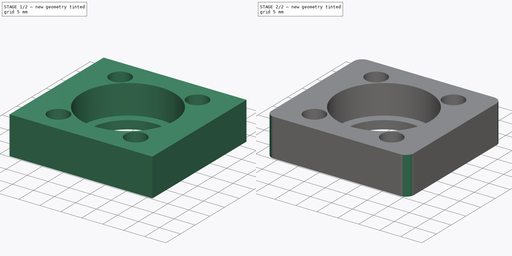
[diagram: build sequence overview — one tinted view per stage of 2, left to right]
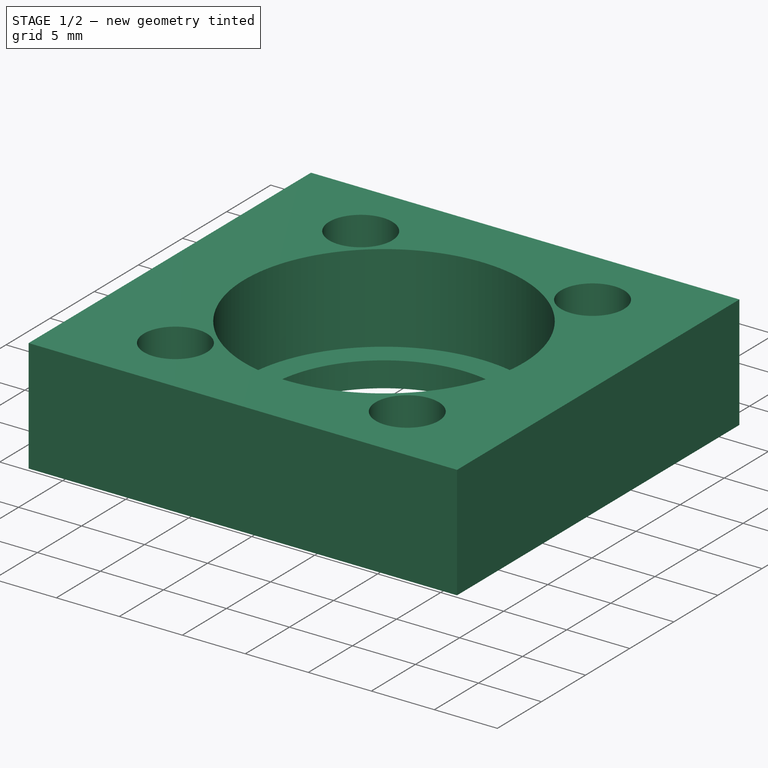
[diagram: stage 1 of 2 — iso view after this stage's code; geometry added in this stage tinted green]
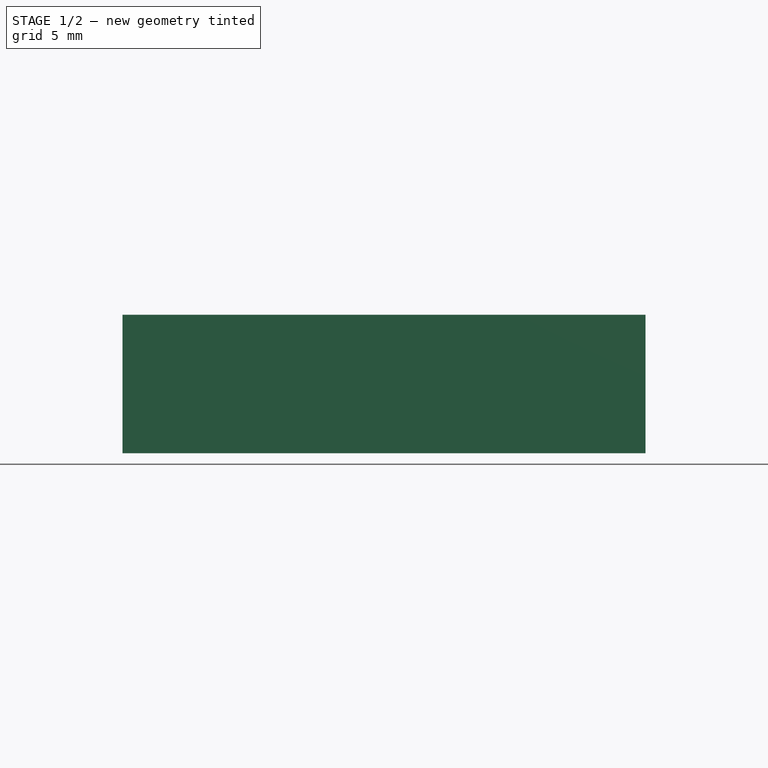
[diagram: stage 1 of 2 — front view after this stage's code; geometry added in this stage tinted green]
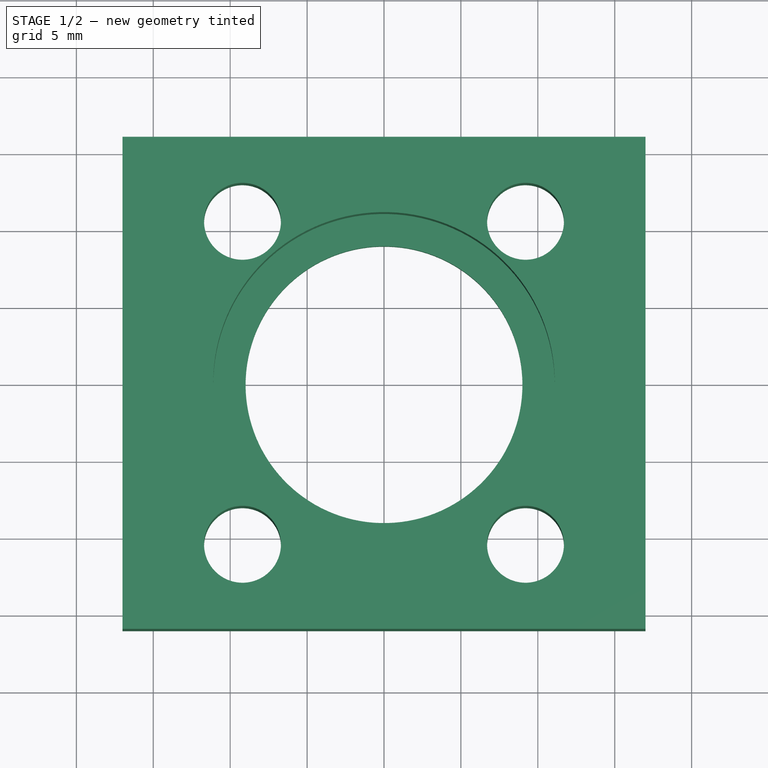
[diagram: stage 1 of 2 — top view after this stage's code; geometry added in this stage tinted green]
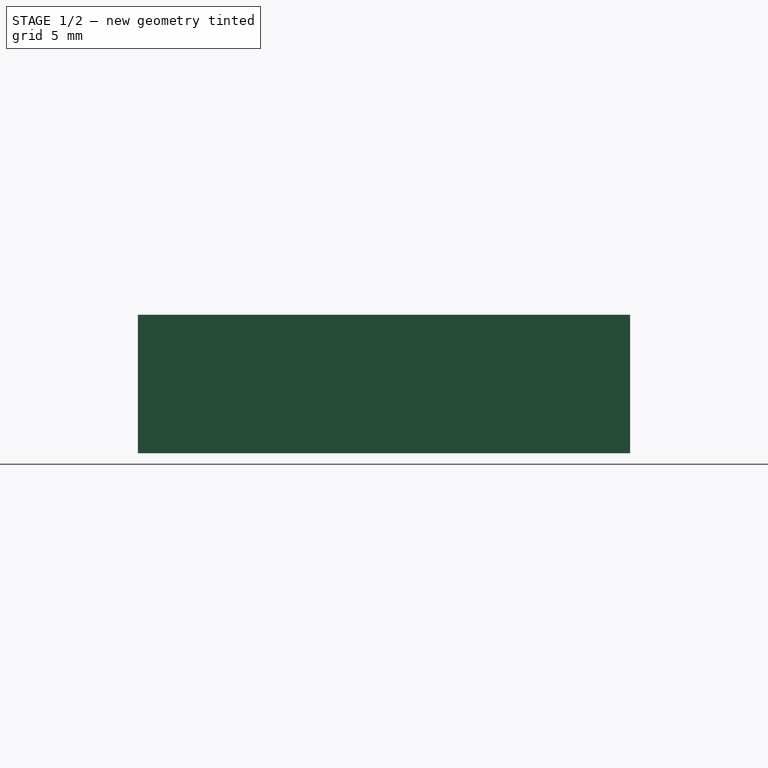
[diagram: stage 1 of 2 — right view after this stage's code; geometry added in this stage tinted green]
FCSTD DOCUMENT  (FreeCAD 0.19R24276 (Git))
Label: Bearing_fix_22x8x7_V2
License: All rights reserved
LicenseURL: http://en.wikipedia.org/wiki/All_rights_reserved
objects: Sketcher::SketchObject×2, PartDesign::Pad×2, PartDesign::Fillet×1, PartDesign::Body×1
note: 9 computed .brp shape members not serialized (recipe doc carries the construction recipe); baked Part::Feature solids carry a one-line shape summary decoded from their .brp

FEATURE [Sketcher::SketchObject] Sketch
  FullyConstrained = true
  MapMode = 5
  Support = -> [XY_Plane]
  sketch-geometry (16):
    g0: Circle CenterX=-9.2 CenterY=10.5 CenterZ=0 NormalX=0 NormalY=0 NormalZ=1 AngleXU=0 Radius=2.5
    g1: Circle CenterX=9.2 CenterY=10.5 CenterZ=0 NormalX=0 NormalY=0 NormalZ=1 AngleXU=0 Radius=2.5
    g2: Circle CenterX=-9.2 CenterY=-10.5 CenterZ=0 NormalX=0 NormalY=0 NormalZ=1 AngleXU=0 Radius=2.5
    g3: Circle CenterX=9.2 CenterY=-10.5 CenterZ=0 NormalX=0 NormalY=0 NormalZ=1 AngleXU=0 Radius=2.5
    g4: LineSegment StartX=-9.2 StartY=10.5 StartZ=0 EndX=9.2 EndY=-10.5 EndZ=0
    g5: LineSegment StartX=-9.2 StartY=-10.5 StartZ=0 EndX=9.2 EndY=10.5 EndZ=0
    g6: GeomPoint X=0 Y=0 Z=0
    g7: GeomPoint X=0 Y=0 Z=0
    g8: Circle CenterX=0 CenterY=0 CenterZ=0 NormalX=0 NormalY=0 NormalZ=1 AngleXU=0 Radius=5.5
    g9: LineSegment StartX=0 StartY=0 StartZ=0 EndX=0 EndY=16 EndZ=0
    g10: Circle CenterX=0 CenterY=0 CenterZ=0 NormalX=0 NormalY=0 NormalZ=1 AngleXU=0 Radius=11.1
    g11: LineSegment StartX=17 StartY=-16 StartZ=0 EndX=-17 EndY=-16 EndZ=0
    g12: LineSegment StartX=-17 StartY=-16 StartZ=0 EndX=-17 EndY=16 EndZ=0
    g13: LineSegment StartX=-17 StartY=16 StartZ=0 EndX=17 EndY=16 EndZ=0
    g14: LineSegment StartX=17 StartY=16 StartZ=0 EndX=17 EndY=-16 EndZ=0
    g15: LineSegment StartX=0 StartY=0 StartZ=0 EndX=0 EndY=-16 EndZ=0
  constraints (39):
    c: Diameter(g0) = 5
    c: Equal(g0,g1)
    c: Equal(g0,g3)
    c: Equal(g0,g2)
    c: Horizontal(g0,g1)
    c: Horizontal(g2,g3)
    c: DistanceX(g2,g3) = 18.4
    c: Vertical(g2,g0)
    c: Vertical(g1,g3)
    c: DistanceY(g3,g1) = 21
    c: Coincident(g4,g0)
    c: Coincident(g4,g3)
    c: Coincident(g5,g2)
    c: Coincident(g5,g1)
    c: PointOnObject(g6,g4)
    c: PointOnObject(g7,g5)
    c: Coincident(g6,g7)
    c: Coincident(g8,g6)
    c: Diameter(g8) = 11
    c: Coincident(g9,g6)
    c: Vertical(g9)
    c: Coincident(g10,g6)
    c: Diameter(g10) = 22.2
    c: Coincident(g11,g12)
    c: Coincident(g12,g13)
    c: Coincident(g13,g14)
    c: Coincident(g14,g11)
    c: Horizontal(g11)
    c: Horizontal(g13)
    c: Vertical(g12)
    c: Vertical(g14)
    c: DistanceX(g13,g13) = 34
    c: Symmetric(g12,g13,g9)
    c: DistanceY(g12,g12) = 32
    c: Coincident(g-1,g6)
    c: Coincident(g15,g-1)
    c: PointOnObject(g15,g11)
    c: Vertical(g15)
    c: Equal(g15,g9)
FEATURE [PartDesign::Pad] Pad
  Direction = (1,1,1)
  Length = 7
  Length2 = 100
  Profile = -> Sketch
  Type = 0
FEATURE [Sketcher::SketchObject] Sketch001
  FullyConstrained = true
  MapMode = 5
  Support = -> [XY_Plane]
  sketch-geometry (16):
    g0: Circle CenterX=-9.2 CenterY=10.5 CenterZ=0 NormalX=0 NormalY=0 NormalZ=1 AngleXU=0 Radius=2.5
    g1: Circle CenterX=9.2 CenterY=10.5 CenterZ=0 NormalX=0 NormalY=0 NormalZ=1 AngleXU=0 Radius=2.5
    g2: Circle CenterX=-9.2 CenterY=-10.5 CenterZ=0 NormalX=0 NormalY=0 NormalZ=1 AngleXU=0 Radius=2.5
    g3: Circle CenterX=9.2 CenterY=-10.5 CenterZ=0 NormalX=0 NormalY=0 NormalZ=1 AngleXU=0 Radius=2.5
    g4: LineSegment StartX=-9.2 StartY=10.5 StartZ=0 EndX=9.2 EndY=-10.5 EndZ=0
    g5: LineSegment StartX=-9.2 StartY=-10.5 StartZ=0 EndX=9.2 EndY=10.5 EndZ=0
    g6: GeomPoint X=0 Y=0 Z=0
    g7: GeomPoint X=0 Y=0 Z=0
    g8: Circle CenterX=0 CenterY=0 CenterZ=0 NormalX=0 NormalY=0 NormalZ=1 AngleXU=0 Radius=5.5
    g9: LineSegment StartX=0 StartY=0 StartZ=0 EndX=0 EndY=16 EndZ=0
    g10: Circle CenterX=0 CenterY=0 CenterZ=0 NormalX=0 NormalY=0 NormalZ=1 AngleXU=0 Radius=9
    g11: LineSegment StartX=17 StartY=-16 StartZ=0 EndX=-17 EndY=-16 EndZ=0
    g12: LineSegment StartX=-17 StartY=-16 StartZ=0 EndX=-17 EndY=16 EndZ=0
    g13: LineSegment StartX=-17 StartY=16 StartZ=0 EndX=17 EndY=16 EndZ=0
    g14: LineSegment StartX=17 StartY=16 StartZ=0 EndX=17 EndY=-16 EndZ=0
    g15: LineSegment StartX=0 StartY=0 StartZ=0 EndX=0 EndY=-16 EndZ=0
  constraints (39):
    c: Diameter(g0) = 5
    c: Equal(g0,g1)
    c: Equal(g0,g3)
    c: Equal(g0,g2)
    c: Horizontal(g0,g1)
    c: Horizontal(g2,g3)
    c: DistanceX(g2,g3) = 18.4
    c: Vertical(g2,g0)
    c: Vertical(g1,g3)
    c: DistanceY(g3,g1) = 21
    c: Coincident(g4,g0)
    c: Coincident(g4,g3)
    c: Coincident(g5,g2)
    c: Coincident(g5,g1)
    c: PointOnObject(g6,g4)
    c: PointOnObject(g7,g5)
    c: Coincident(g6,g7)
    c: Coincident(g8,g6)
    c: Diameter(g8) = 11
    c: Coincident(g9,g6)
    c: Vertical(g9)
    c: Coincident(g10,g6)
    c: Diameter(g10) = 18
    c: Coincident(g11,g12)
    c: Coincident(g12,g13)
    c: Coincident(g13,g14)
    c: Coincident(g14,g11)
    c: Horizontal(g11)
    c: Horizontal(g13)
    c: Vertical(g12)
    c: Vertical(g14)
    c: DistanceX(g13,g13) = 34
    c: Symmetric(g12,g13,g9)
    c: DistanceY(g12,g12) = 32
    c: Coincident(g-1,g6)
    c: Coincident(g15,g-1)
    c: PointOnObject(g15,g11)
    c: Vertical(g15)
    c: Equal(g15,g9)
FEATURE [PartDesign::Pad] Pad001
  BaseFeature = -> Pad
  Direction = (1,1,1)
  Length = 2
  Length2 = 100
  Profile = -> Sketch001
  Reversed = true
  Type = 0
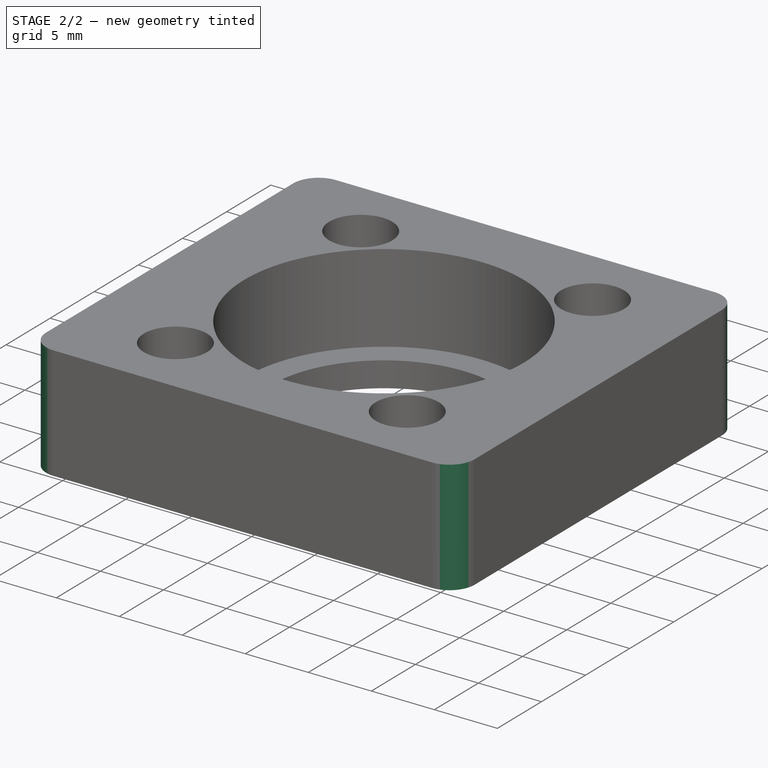
[diagram: stage 2 of 2 — iso view after this stage's code; geometry added in this stage tinted green]
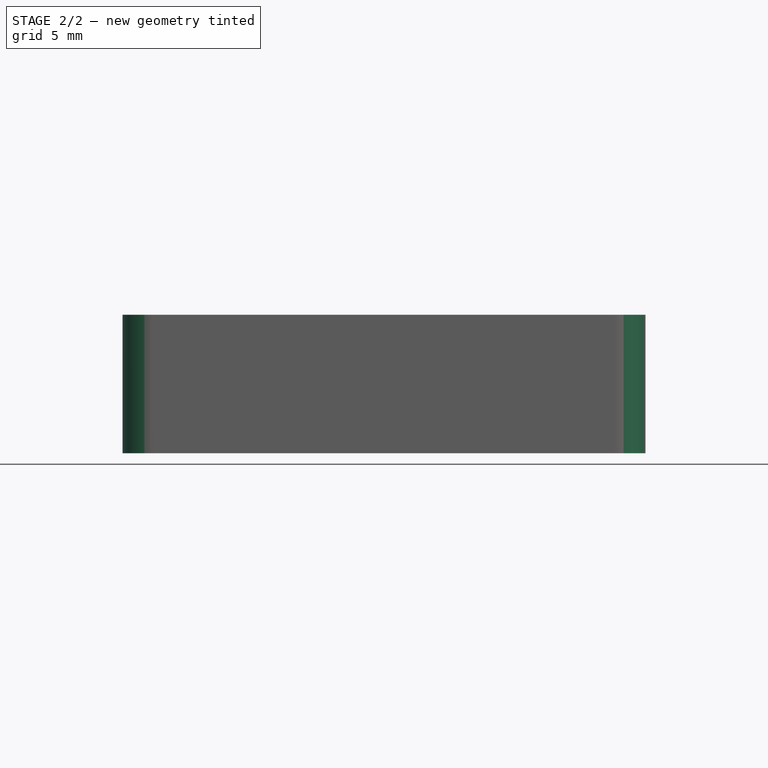
[diagram: stage 2 of 2 — front view after this stage's code; geometry added in this stage tinted green]
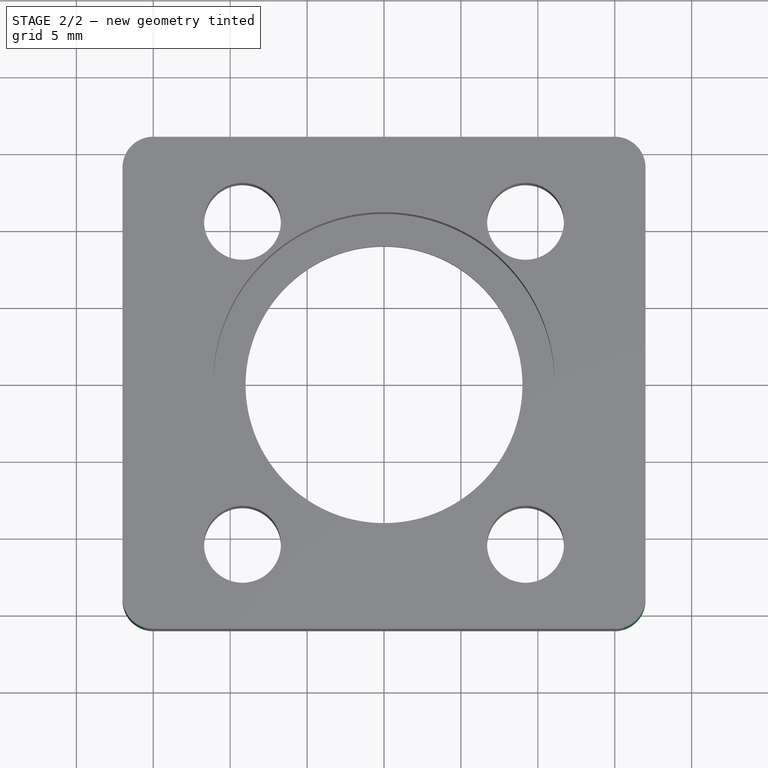
[diagram: stage 2 of 2 — top view after this stage's code; geometry added in this stage tinted green]
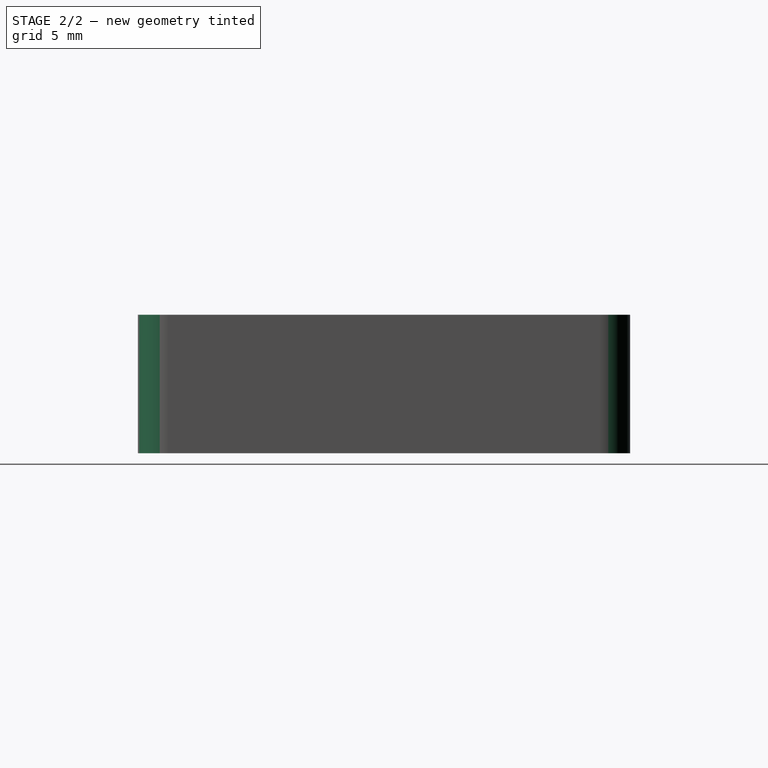
[diagram: stage 2 of 2 — right view after this stage's code; geometry added in this stage tinted green]
FEATURE [PartDesign::Fillet] Fillet
  Base = -> Pad001 [Edge11,Edge1,Edge12,Edge2,Edge5,Edge21,Edge8,Edge23]
  BaseFeature = -> Pad001
  Radius = 2
  SupportTransform = false
FEATURE [PartDesign::Body] Body
  Group = -> [Sketch,Pad,Sketch001,Pad001,Fillet]
  Origin = -> Origin
  Tip = -> Fillet
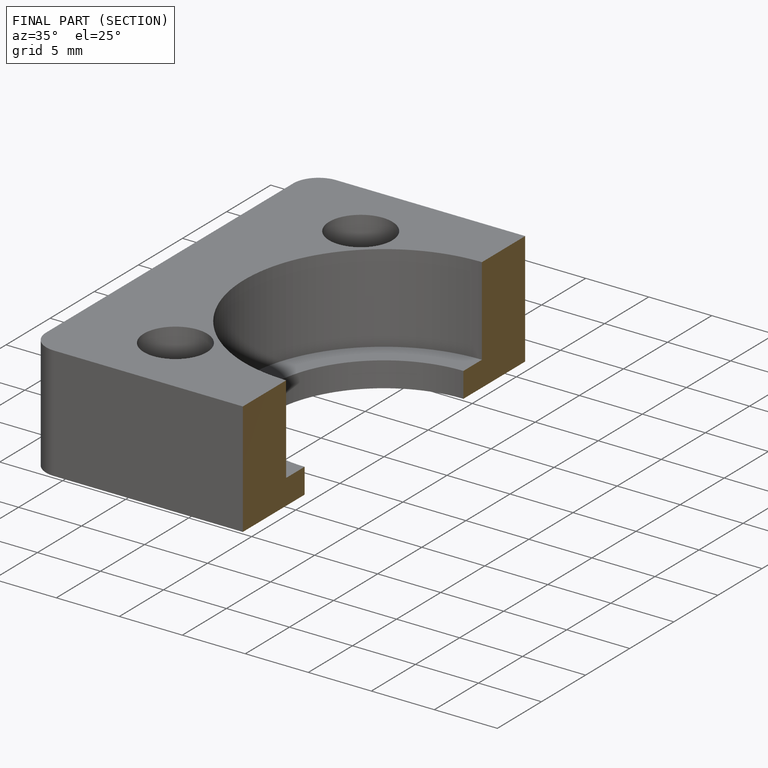
[diagram: finished part — half-section view (interior)]
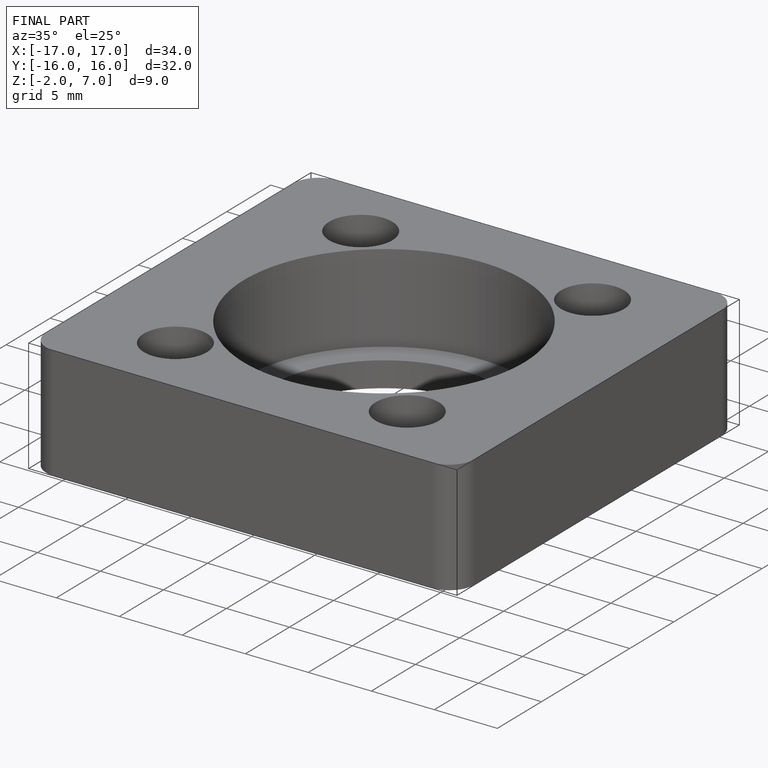
[diagram: finished part — iso view with bounding-box wireframe]
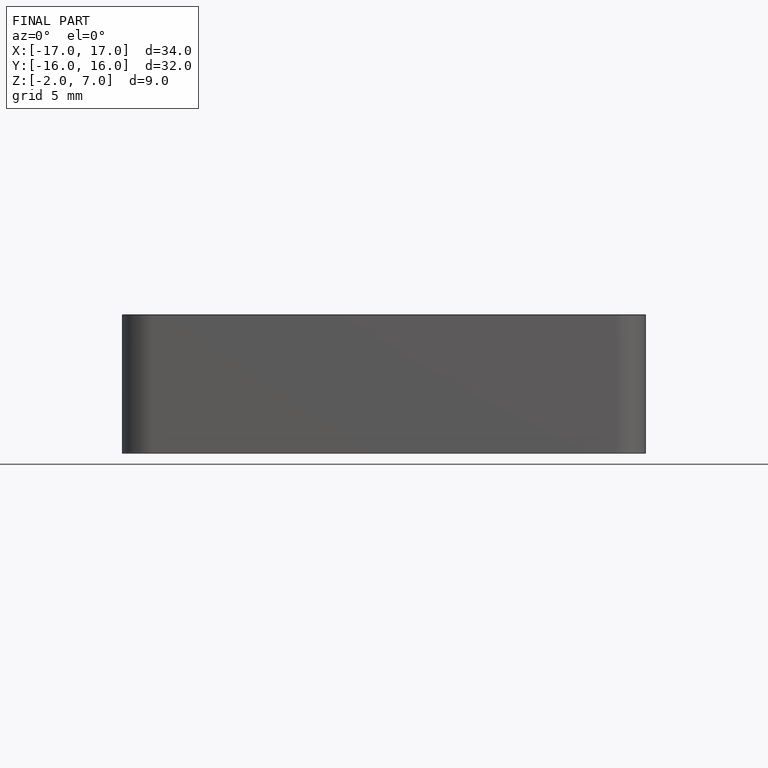
[diagram: finished part — front view with bounding-box wireframe]
